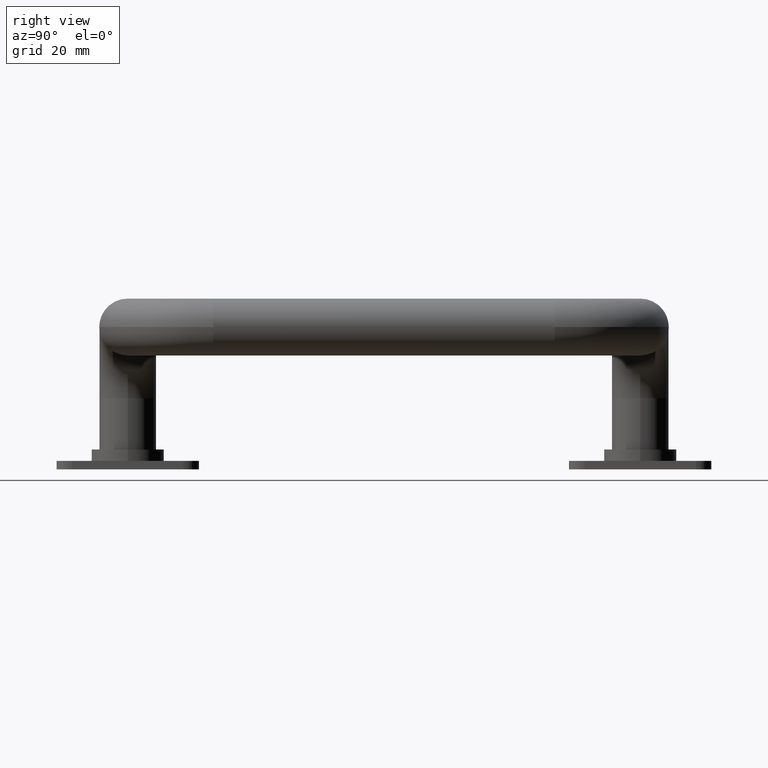
[diagram: clean part render]
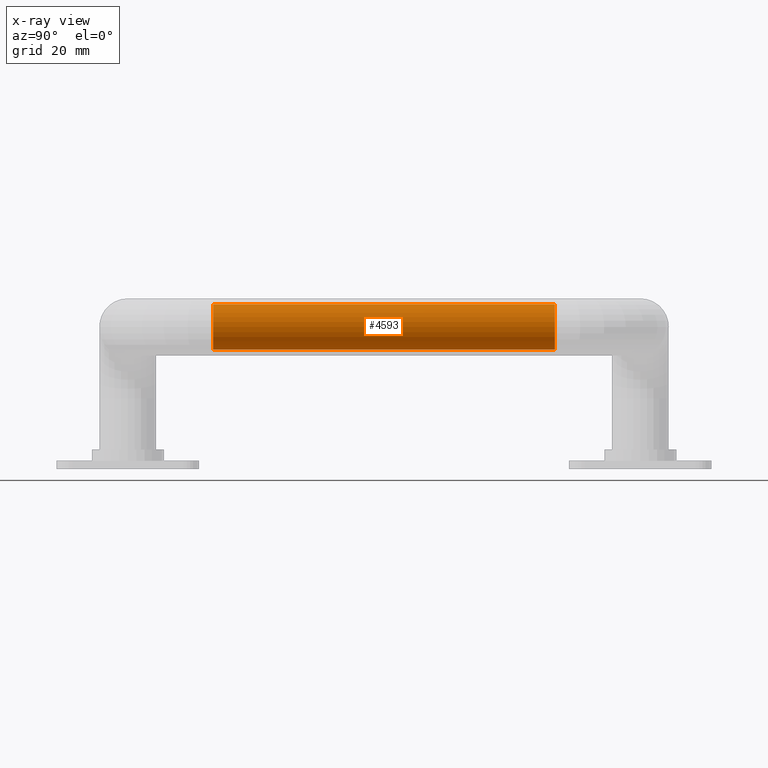
[diagram: x-ray — body ghosted, one internal face saturated and labeled with its STEP entity id]
A machine part, right view, then the same camera in x-ray: the body is ghosted and one INTERNAL B-rep face — a face not visible from any outside direction — is saturated and labeled: STEP entity #4593.
In plain terms, the highlighted cylindrical surface (edge-blend (fillet) strip) has radius 8 mm, axis along (0, -1, 0).
Its self-contained STEP definition (entity closure, byte-faithful):
#301 = CARTESIAN_POINT ( 'NONE',  ( 70.00000000000000000, -59.99999999999999289, 50.00000000000000711 ) ) ;
#594 = EDGE_LOOP ( 'NONE', ( #1118, #1003, #6333, #734, #2495, #6253 ) ) ;
#663 = CARTESIAN_POINT ( 'NONE',  ( 70.00000000000000000, 60.00000000000000000, 42.00000000000000000 ) ) ;
#734 = ORIENTED_EDGE ( 'NONE', *, *, #6499, .T. ) ;
#973 = EDGE_CURVE ( 'NONE', #6718, #4817, #9810, .T. ) ;
#1003 = ORIENTED_EDGE ( 'NONE', *, *, #6677, .T. ) ;
#1118 = ORIENTED_EDGE ( 'NONE', *, *, #7763, .F. ) ;
#1181 = CARTESIAN_POINT ( 'NONE',  ( 70.00000000000000000, -59.99999999999999289, 58.00000000000000711 ) ) ;
#1474 = CARTESIAN_POINT ( 'NONE',  ( 70.00000000000000000, 60.00000000000000000, 50.00000000000000000 ) ) ;
#1697 = VERTEX_POINT ( 'NONE', #1181 ) ;
#1867 = DIRECTION ( 'NONE',  ( 0.000000000000000000, 1.000000000000000000, -6.938893903907228378E-17 ) ) ;
#2105 = VECTOR ( 'NONE', #3378, 1000.000000000000000 ) ;
#2122 = EDGE_CURVE ( 'NONE', #7282, #5650, #4585, .T. ) ;
#2325 = CARTESIAN_POINT ( 'NONE',  ( 70.00000000000000000, 60.00000000000000000, 42.00000000000000000 ) ) ;
#2476 = VERTEX_POINT ( 'NONE', #3080 ) ;
#2486 = DIRECTION ( 'NONE',  ( 0.000000000000000000, 0.000000000000000000, -1.000000000000000000 ) ) ;
#2495 = ORIENTED_EDGE ( 'NONE', *, *, #973, .F. ) ;
#2544 = CARTESIAN_POINT ( 'NONE',  ( 70.00000000000000000, 60.00000000000000000, 58.00000000000000000 ) ) ;
#2545 = AXIS2_PLACEMENT_3D ( 'NONE', #5137, #4867, #5692 ) ;
#3080 = CARTESIAN_POINT ( 'NONE',  ( 70.00000000000000000, 60.00000000000000000, 58.00000000000000000 ) ) ;
#3311 = CYLINDRICAL_SURFACE ( 'NONE', #2545, 8.000000000000000000 ) ;
#3341 = DIRECTION ( 'NONE',  ( 0.000000000000000000, 0.000000000000000000, -1.000000000000000000 ) ) ;
#3378 = DIRECTION ( 'NONE',  ( 0.000000000000000000, -1.000000000000000000, 0.000000000000000000 ) ) ;
#3569 = CARTESIAN_POINT ( 'NONE',  ( 70.00000000000000000, 60.00000000000000000, 50.00000000000000000 ) ) ;
#3883 = AXIS2_PLACEMENT_3D ( 'NONE', #9561, #6324, #2486 ) ;
#4019 = DIRECTION ( 'NONE',  ( 0.000000000000000000, 0.000000000000000000, -1.000000000000000000 ) ) ;
#4375 = CARTESIAN_POINT ( 'NONE',  ( 78.00000000000001421, -59.99999999999999289, 50.00000000000000711 ) ) ;
#4532 = DIRECTION ( 'NONE',  ( -0.000000000000000000, 1.000000000000000000, -6.938893903907228378E-17 ) ) ;
#4585 = CIRCLE ( 'NONE', #9517, 8.000000000000000000 ) ;
#4593 = ADVANCED_FACE ( 'NONE', ( #6338 ), #3311, .F. ) ;
#4817 = VERTEX_POINT ( 'NONE', #6536 ) ;
#4867 = DIRECTION ( 'NONE',  ( 0.000000000000000000, -1.000000000000000000, 0.000000000000000000 ) ) ;
#5108 = LINE ( 'NONE', #663, #8564 ) ;
#5137 = CARTESIAN_POINT ( 'NONE',  ( 70.00000000000000000, 60.00000000000000000, 50.00000000000000000 ) ) ;
#5140 = AXIS2_PLACEMENT_3D ( 'NONE', #3569, #5802, #8023 ) ;
#5650 = VERTEX_POINT ( 'NONE', #2325 ) ;
#5692 = DIRECTION ( 'NONE',  ( 0.000000000000000000, 0.000000000000000000, -1.000000000000000000 ) ) ;
#5802 = DIRECTION ( 'NONE',  ( -0.000000000000000000, 1.000000000000000000, -6.938893903907228378E-17 ) ) ;
#6188 = CIRCLE ( 'NONE', #5140, 8.000000000000000000 ) ;
#6253 = ORIENTED_EDGE ( 'NONE', *, *, #7706, .F. ) ;
#6324 = DIRECTION ( 'NONE',  ( 0.000000000000000000, 1.000000000000000000, -6.938893903907228378E-17 ) ) ;
#6333 = ORIENTED_EDGE ( 'NONE', *, *, #2122, .T. ) ;
#6338 = FACE_OUTER_BOUND ( 'NONE', #594, .T. ) ;
#6499 = EDGE_CURVE ( 'NONE', #5650, #4817, #5108, .T. ) ;
#6536 = CARTESIAN_POINT ( 'NONE',  ( 70.00000000000000000, -59.99999999999999289, 42.00000000000000711 ) ) ;
#6677 = EDGE_CURVE ( 'NONE', #2476, #7282, #6188, .T. ) ;
#6718 = VERTEX_POINT ( 'NONE', #4375 ) ;
#7038 = CARTESIAN_POINT ( 'NONE',  ( 78.00000000000001421, 60.00000000000000000, 50.00000000000000000 ) ) ;
#7282 = VERTEX_POINT ( 'NONE', #7038 ) ;
#7706 = EDGE_CURVE ( 'NONE', #1697, #6718, #9667, .T. ) ;
#7763 = EDGE_CURVE ( 'NONE', #2476, #1697, #8206, .T. ) ;
#8023 = DIRECTION ( 'NONE',  ( 0.000000000000000000, 0.000000000000000000, -1.000000000000000000 ) ) ;
#8102 = AXIS2_PLACEMENT_3D ( 'NONE', #301, #1867, #3341 ) ;
#8206 = LINE ( 'NONE', #2544, #2105 ) ;
#8564 = VECTOR ( 'NONE', #9897, 1000.000000000000000 ) ;
#9517 = AXIS2_PLACEMENT_3D ( 'NONE', #1474, #4532, #4019 ) ;
#9561 = CARTESIAN_POINT ( 'NONE',  ( 70.00000000000000000, -59.99999999999999289, 50.00000000000000711 ) ) ;
#9667 = CIRCLE ( 'NONE', #8102, 8.000000000000000000 ) ;
#9810 = CIRCLE ( 'NONE', #3883, 8.000000000000000000 ) ;
#9897 = DIRECTION ( 'NONE',  ( 0.000000000000000000, -1.000000000000000000, 0.000000000000000000 ) ) ;